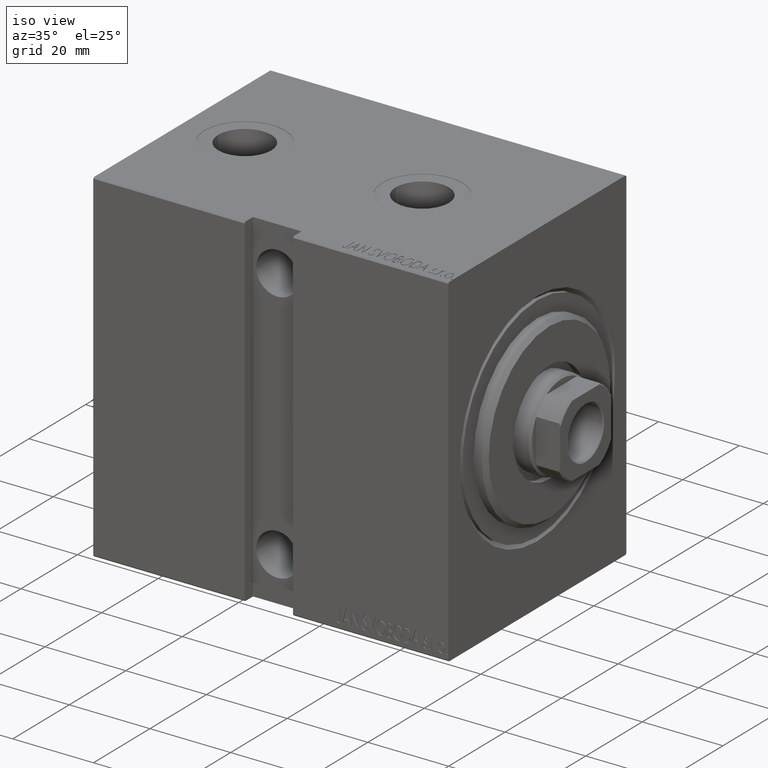
[diagram: clean part render]
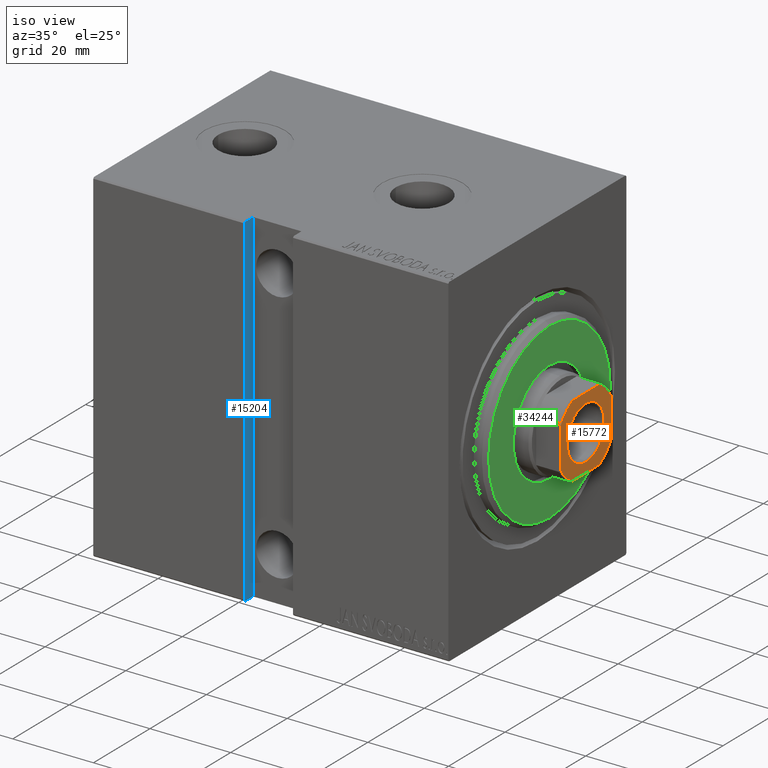
[diagram: same view with three faces highlighted in distinct colors, each labeled with its STEP entity id]
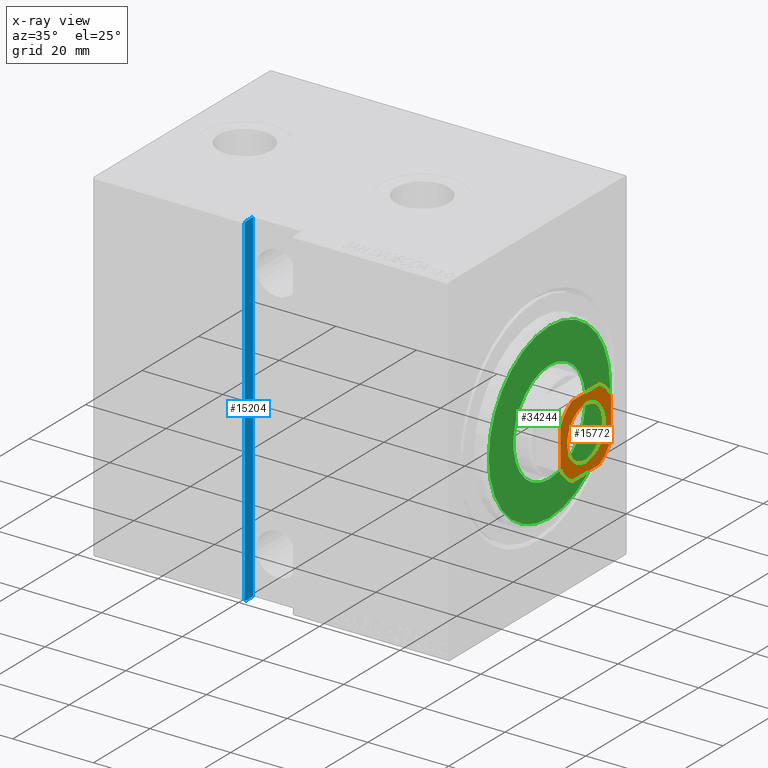
[diagram: x-ray of the same camera — body ghosted, the three highlighted faces saturated]
A machine part, iso view with three faces highlighted in distinct colors.
The next image is the same camera in x-ray (body ghosted, the three faces saturated) — at least one of them is partly hidden behind the body in this view.
Their STEP definitions:

[orange] entity #15772 — the highlighted planar face has unit normal (1, 0, -0).
#382 = CARTESIAN_POINT ( 'NONE',  ( -8.999999999999998224, -9.000000000000001776, 88.00000000000000000 ) ) ;
#469 = DIRECTION ( 'NONE',  ( -1.000000000000000000, -0.000000000000000000, -0.000000000000000000 ) ) ;
#750 = EDGE_CURVE ( 'NONE', #10145, #30792, #9966, .T. ) ;
#1227 = DIRECTION ( 'NONE',  ( 1.000000000000000000, 0.000000000000000000, 0.000000000000000000 ) ) ;
#1326 = FACE_BOUND ( 'NONE', #40273, .T. ) ;
#1560 = PLANE ( 'NONE',  #3430 ) ;
#2052 = DIRECTION ( 'NONE',  ( -0.000000000000000000, 0.000000000000000000, 1.000000000000000000 ) ) ;
#2155 = AXIS2_PLACEMENT_3D ( 'NONE', #39430, #36520, #39646 ) ;
#2222 = DIRECTION ( 'NONE',  ( 0.000000000000000000, -0.000000000000000000, -1.000000000000000000 ) ) ;
#2918 = CARTESIAN_POINT ( 'NONE',  ( -9.000000000000001776, 4.800000000000007816, 88.00000000000000000 ) ) ;
#3076 = LINE ( 'NONE', #9990, #25803 ) ;
#3413 = EDGE_CURVE ( 'NONE', #31403, #19764, #42720, .T. ) ;
#3430 = AXIS2_PLACEMENT_3D ( 'NONE', #15394, #22065, #8465 ) ;
#5018 = CIRCLE ( 'NONE', #11446, 6.550000000000000711 ) ;
#5256 = DIRECTION ( 'NONE',  ( -0.000000000000000000, 0.000000000000000000, 1.000000000000000000 ) ) ;
#6451 = CARTESIAN_POINT ( 'NONE',  ( 8.999999999999998224, 8.999999999999998224, 88.00000000000000000 ) ) ;
#7095 = EDGE_CURVE ( 'NONE', #37706, #38026, #5018, .T. ) ;
#7229 = VERTEX_POINT ( 'NONE', #14025 ) ;
#7811 = CARTESIAN_POINT ( 'NONE',  ( -9.000000000000001776, 8.999999999999998224, 88.00000000000000000 ) ) ;
#8465 = DIRECTION ( 'NONE',  ( 1.000000000000000000, 0.000000000000000000, 0.000000000000000000 ) ) ;
#9097 = CARTESIAN_POINT ( 'NONE',  ( 6.550000000000000711, 0.000000000000000000, 88.00000000000000000 ) ) ;
#9129 = ORIENTED_EDGE ( 'NONE', *, *, #23043, .T. ) ;
#9966 = CIRCLE ( 'NONE', #29167, 10.19999999999998863 ) ;
#9990 = CARTESIAN_POINT ( 'NONE',  ( -9.000000000000001776, 8.999999999999998224, 88.00000000000000000 ) ) ;
#10145 = VERTEX_POINT ( 'NONE', #25550 ) ;
#11076 = ORIENTED_EDGE ( 'NONE', *, *, #36898, .T. ) ;
#11446 = AXIS2_PLACEMENT_3D ( 'NONE', #29416, #2222, #42518 ) ;
#12097 = EDGE_CURVE ( 'NONE', #41346, #36229, #3076, .T. ) ;
#12498 = DIRECTION ( 'NONE',  ( -1.927470528863119049E-16, 1.000000000000000000, -0.000000000000000000 ) ) ;
#12730 = CARTESIAN_POINT ( 'NONE',  ( 4.799999999999979394, 8.999999999999998224, 88.00000000000000000 ) ) ;
#14025 = CARTESIAN_POINT ( 'NONE',  ( -4.800000000000012257, 8.999999999999998224, 88.00000000000000000 ) ) ;
#14219 = CIRCLE ( 'NONE', #36260, 10.20000000000000462 ) ;
#14915 = VECTOR ( 'NONE', #33582, 1000.000000000000000 ) ;
#14998 = DIRECTION ( 'NONE',  ( 1.000000000000000000, 0.000000000000000000, 0.000000000000000000 ) ) ;
#15394 = CARTESIAN_POINT ( 'NONE',  ( 0.000000000000000000, 0.000000000000000000, 88.00000000000000000 ) ) ;
#15772 = ADVANCED_FACE ( 'NONE', ( #1326, #22296 ), #1560, .T. ) ;
#15783 = CIRCLE ( 'NONE', #18606, 10.19999999999997975 ) ;
#17420 = CARTESIAN_POINT ( 'NONE',  ( 0.000000000000000000, 0.000000000000000000, 88.00000000000000000 ) ) ;
#18606 = AXIS2_PLACEMENT_3D ( 'NONE', #17420, #27657, #20104 ) ;
#19077 = ORIENTED_EDGE ( 'NONE', *, *, #37608, .T. ) ;
#19764 = VERTEX_POINT ( 'NONE', #35438 ) ;
#20019 = LINE ( 'NONE', #382, #14915 ) ;
#20104 = DIRECTION ( 'NONE',  ( 1.000000000000000000, 0.000000000000000000, 0.000000000000000000 ) ) ;
#20281 = EDGE_CURVE ( 'NONE', #41378, #31403, #20019, .T. ) ;
#20450 = CARTESIAN_POINT ( 'NONE',  ( 0.000000000000000000, 0.000000000000000000, 88.00000000000000000 ) ) ;
#21368 = CIRCLE ( 'NONE', #2155, 6.550000000000000711 ) ;
#22065 = DIRECTION ( 'NONE',  ( -0.000000000000000000, 0.000000000000000000, 1.000000000000000000 ) ) ;
#22296 = FACE_OUTER_BOUND ( 'NONE', #36457, .T. ) ;
#22518 = CARTESIAN_POINT ( 'NONE',  ( -6.550000000000000711, 8.021436534415164234E-16, 88.00000000000000000 ) ) ;
#23043 = EDGE_CURVE ( 'NONE', #38026, #37706, #21368, .T. ) ;
#23881 = ORIENTED_EDGE ( 'NONE', *, *, #7095, .T. ) ;
#25119 = EDGE_CURVE ( 'NONE', #7229, #41346, #14219, .T. ) ;
#25550 = CARTESIAN_POINT ( 'NONE',  ( 8.999999999999998224, 4.799999999999978506, 88.00000000000000000 ) ) ;
#25803 = VECTOR ( 'NONE', #44030, 1000.000000000000000 ) ;
#25892 = CARTESIAN_POINT ( 'NONE',  ( -4.799999999999956302, -9.000000000000001776, 88.00000000000000000 ) ) ;
#27657 = DIRECTION ( 'NONE',  ( -0.000000000000000000, 0.000000000000000000, 1.000000000000000000 ) ) ;
#27662 = LINE ( 'NONE', #7811, #35814 ) ;
#29167 = AXIS2_PLACEMENT_3D ( 'NONE', #39023, #2052, #14998 ) ;
#29416 = CARTESIAN_POINT ( 'NONE',  ( 0.000000000000000000, 0.000000000000000000, 88.00000000000000000 ) ) ;
#30683 = EDGE_CURVE ( 'NONE', #36229, #41378, #15783, .T. ) ;
#30792 = VERTEX_POINT ( 'NONE', #12730 ) ;
#31403 = VERTEX_POINT ( 'NONE', #34076 ) ;
#31688 = ORIENTED_EDGE ( 'NONE', *, *, #3413, .T. ) ;
#33361 = DIRECTION ( 'NONE',  ( 1.000000000000000000, 0.000000000000000000, 0.000000000000000000 ) ) ;
#33582 = DIRECTION ( 'NONE',  ( 1.000000000000000000, 0.000000000000000000, 0.000000000000000000 ) ) ;
#34076 = CARTESIAN_POINT ( 'NONE',  ( 4.799999999999974065, -9.000000000000001776, 88.00000000000000000 ) ) ;
#35438 = CARTESIAN_POINT ( 'NONE',  ( 9.000000000000001776, -4.799999999999974065, 88.00000000000000000 ) ) ;
#35814 = VECTOR ( 'NONE', #469, 1000.000000000000000 ) ;
#36229 = VERTEX_POINT ( 'NONE', #37986 ) ;
#36260 = AXIS2_PLACEMENT_3D ( 'NONE', #43818, #42547, #33361 ) ;
#36457 = EDGE_LOOP ( 'NONE', ( #11076, #38423, #19077, #42194, #41554, #40236, #39538, #31688 ) ) ;
#36520 = DIRECTION ( 'NONE',  ( 0.000000000000000000, -0.000000000000000000, -1.000000000000000000 ) ) ;
#36898 = EDGE_CURVE ( 'NONE', #19764, #10145, #36940, .T. ) ;
#36940 = LINE ( 'NONE', #6451, #37245 ) ;
#37245 = VECTOR ( 'NONE', #12498, 1000.000000000000000 ) ;
#37608 = EDGE_CURVE ( 'NONE', #30792, #7229, #27662, .T. ) ;
#37706 = VERTEX_POINT ( 'NONE', #22518 ) ;
#37766 = AXIS2_PLACEMENT_3D ( 'NONE', #20450, #5256, #1227 ) ;
#37986 = CARTESIAN_POINT ( 'NONE',  ( -8.999999999999998224, -4.799999999999960743, 88.00000000000000000 ) ) ;
#38026 = VERTEX_POINT ( 'NONE', #9097 ) ;
#38423 = ORIENTED_EDGE ( 'NONE', *, *, #750, .T. ) ;
#39023 = CARTESIAN_POINT ( 'NONE',  ( 0.000000000000000000, 0.000000000000000000, 88.00000000000000000 ) ) ;
#39430 = CARTESIAN_POINT ( 'NONE',  ( 0.000000000000000000, 0.000000000000000000, 88.00000000000000000 ) ) ;
#39538 = ORIENTED_EDGE ( 'NONE', *, *, #20281, .T. ) ;
#39646 = DIRECTION ( 'NONE',  ( 1.000000000000000000, 0.000000000000000000, 0.000000000000000000 ) ) ;
#40236 = ORIENTED_EDGE ( 'NONE', *, *, #30683, .T. ) ;
#40273 = EDGE_LOOP ( 'NONE', ( #9129, #23881 ) ) ;
#41346 = VERTEX_POINT ( 'NONE', #2918 ) ;
#41378 = VERTEX_POINT ( 'NONE', #25892 ) ;
#41554 = ORIENTED_EDGE ( 'NONE', *, *, #12097, .T. ) ;
#42194 = ORIENTED_EDGE ( 'NONE', *, *, #25119, .T. ) ;
#42518 = DIRECTION ( 'NONE',  ( 1.000000000000000000, 0.000000000000000000, 0.000000000000000000 ) ) ;
#42547 = DIRECTION ( 'NONE',  ( -0.000000000000000000, 0.000000000000000000, 1.000000000000000000 ) ) ;
#42720 = CIRCLE ( 'NONE', #37766, 10.19999999999998863 ) ;
#43818 = CARTESIAN_POINT ( 'NONE',  ( 0.000000000000000000, 0.000000000000000000, 88.00000000000000000 ) ) ;
#44030 = DIRECTION ( 'NONE',  ( 1.927470528863119049E-16, -1.000000000000000000, 0.000000000000000000 ) ) ;

[blue] entity #15204 — the highlighted planar face has unit normal (-1, 0, -0).
#1943 = VERTEX_POINT ( 'NONE', #28978 ) ;
#2559 = CARTESIAN_POINT ( 'NONE',  ( 50.49999999999999289, 28.50000000000000711, -42.50000000000000711 ) ) ;
#3397 = VECTOR ( 'NONE', #27287, 1000.000000000000000 ) ;
#3891 = ORIENTED_EDGE ( 'NONE', *, *, #15311, .F. ) ;
#3899 = ORIENTED_EDGE ( 'NONE', *, *, #7161, .T. ) ;
#4480 = LINE ( 'NONE', #37078, #15559 ) ;
#7043 = VERTEX_POINT ( 'NONE', #42084 ) ;
#7161 = EDGE_CURVE ( 'NONE', #1943, #39086, #13587, .T. ) ;
#7344 = VECTOR ( 'NONE', #9400, 1000.000000000000000 ) ;
#8144 = CARTESIAN_POINT ( 'NONE',  ( 50.50000000000000711, 28.50000000000000711, 42.49999999999995737 ) ) ;
#9400 = DIRECTION ( 'NONE',  ( -1.154479749032201304E-16, -0.7071067811865393571, -0.7071067811865556774 ) ) ;
#9584 = ORIENTED_EDGE ( 'NONE', *, *, #37366, .F. ) ;
#9920 = DIRECTION ( 'NONE',  ( -1.154479749032148056E-16, 0.7071067811865721087, -0.7071067811865230368 ) ) ;
#10137 = CARTESIAN_POINT ( 'NONE',  ( 50.50000000000000711, 28.50000000000000711, 42.49999999999995737 ) ) ;
#10507 = ORIENTED_EDGE ( 'NONE', *, *, #17363, .T. ) ;
#12386 = FACE_OUTER_BOUND ( 'NONE', #31683, .T. ) ;
#12867 = VECTOR ( 'NONE', #27176, 1000.000000000000000 ) ;
#13074 = EDGE_CURVE ( 'NONE', #39086, #7043, #19852, .T. ) ;
#13587 = LINE ( 'NONE', #40725, #12867 ) ;
#14231 = VERTEX_POINT ( 'NONE', #17783 ) ;
#15204 = ADVANCED_FACE ( 'NONE', ( #12386 ), #15498, .F. ) ;
#15311 = EDGE_CURVE ( 'NONE', #37182, #39304, #29958, .T. ) ;
#15498 = PLANE ( 'NONE',  #43193 ) ;
#15559 = VECTOR ( 'NONE', #9920, 1000.000000000000000 ) ;
#15946 = DIRECTION ( 'NONE',  ( -1.632680918566407286E-16, 0.000000000000000000, -1.000000000000000000 ) ) ;
#17363 = EDGE_CURVE ( 'NONE', #14231, #1943, #4480, .T. ) ;
#17783 = CARTESIAN_POINT ( 'NONE',  ( 50.50000000000000711, 31.19999999999999218, 42.49999999999995737 ) ) ;
#19852 = LINE ( 'NONE', #43659, #7344 ) ;
#21467 = CARTESIAN_POINT ( 'NONE',  ( 50.49999999999999289, 28.50000000000000711, -42.50000000000000711 ) ) ;
#21949 = DIRECTION ( 'NONE',  ( 1.000000000000000000, 0.000000000000000000, -1.632680918566407286E-16 ) ) ;
#24860 = LINE ( 'NONE', #8144, #40020 ) ;
#27176 = DIRECTION ( 'NONE',  ( -1.632680918566407286E-16, -0.000000000000000000, -1.000000000000000000 ) ) ;
#27287 = DIRECTION ( 'NONE',  ( -1.632680918566407286E-16, -0.000000000000000000, -1.000000000000000000 ) ) ;
#28978 = CARTESIAN_POINT ( 'NONE',  ( 50.50000000000000711, 31.50000000000000711, 42.20000000000001705 ) ) ;
#29958 = LINE ( 'NONE', #2559, #3397 ) ;
#30174 = VECTOR ( 'NONE', #42147, 1000.000000000000000 ) ;
#31683 = EDGE_LOOP ( 'NONE', ( #3899, #39459, #9584, #3891, #43119, #10507 ) ) ;
#32189 = CARTESIAN_POINT ( 'NONE',  ( 50.49999999999999289, 31.50000000000000711, -42.20000000000000284 ) ) ;
#33188 = EDGE_CURVE ( 'NONE', #37182, #14231, #24860, .T. ) ;
#35741 = CARTESIAN_POINT ( 'NONE',  ( 50.49999999999999289, 28.50000000000000711, -42.50000000000000711 ) ) ;
#37078 = CARTESIAN_POINT ( 'NONE',  ( 50.50000000000000711, 31.19999999999998863, 42.50000000000000000 ) ) ;
#37182 = VERTEX_POINT ( 'NONE', #10137 ) ;
#37366 = EDGE_CURVE ( 'NONE', #39304, #7043, #38150, .T. ) ;
#38150 = LINE ( 'NONE', #21467, #30174 ) ;
#39086 = VERTEX_POINT ( 'NONE', #32189 ) ;
#39304 = VERTEX_POINT ( 'NONE', #43951 ) ;
#39459 = ORIENTED_EDGE ( 'NONE', *, *, #13074, .T. ) ;
#40020 = VECTOR ( 'NONE', #42639, 1000.000000000000000 ) ;
#40725 = CARTESIAN_POINT ( 'NONE',  ( 50.49999999999999289, 31.50000000000000711, -42.50000000000000711 ) ) ;
#42084 = CARTESIAN_POINT ( 'NONE',  ( 50.49999999999999289, 31.20000000000001350, -42.50000000000000711 ) ) ;
#42147 = DIRECTION ( 'NONE',  ( -0.000000000000000000, 1.000000000000000000, -0.000000000000000000 ) ) ;
#42639 = DIRECTION ( 'NONE',  ( -0.000000000000000000, 1.000000000000000000, -0.000000000000000000 ) ) ;
#43119 = ORIENTED_EDGE ( 'NONE', *, *, #33188, .T. ) ;
#43193 = AXIS2_PLACEMENT_3D ( 'NONE', #35741, #21949, #15946 ) ;
#43659 = CARTESIAN_POINT ( 'NONE',  ( 50.49999999999999289, 31.50000000000001421, -42.20000000000000284 ) ) ;
#43951 = CARTESIAN_POINT ( 'NONE',  ( 50.50000000000000711, 28.50000000000000355, -42.50000000000000711 ) ) ;

[green] entity #34244 — the highlighted planar face has unit normal (1, 0, 0).
#1109 = CARTESIAN_POINT ( 'NONE',  ( 3.000000000000000000, 2.694222958124177598E-15, -21.50000000000000355 ) ) ;
#1611 = ORIENTED_EDGE ( 'NONE', *, *, #2214, .T. ) ;
#1951 = DIRECTION ( 'NONE',  ( -1.000000000000000000, 0.000000000000000000, -0.000000000000000000 ) ) ;
#2214 = EDGE_CURVE ( 'NONE', #41766, #33597, #5730, .T. ) ;
#3196 = CARTESIAN_POINT ( 'NONE',  ( 3.000000000000000000, 0.000000000000000000, 0.000000000000000000 ) ) ;
#3284 = DIRECTION ( 'NONE',  ( 1.000000000000000000, -0.000000000000000000, 0.000000000000000000 ) ) ;
#3839 = CARTESIAN_POINT ( 'NONE',  ( 3.000000000000000000, 0.000000000000000000, 0.000000000000000000 ) ) ;
#5730 = CIRCLE ( 'NONE', #24241, 12.75000000000000000 ) ;
#6315 = DIRECTION ( 'NONE',  ( 0.000000000000000000, 0.000000000000000000, -1.000000000000000000 ) ) ;
#7309 = CARTESIAN_POINT ( 'NONE',  ( 3.000000000000000000, 0.000000000000000000, 12.75000000000000000 ) ) ;
#8356 = AXIS2_PLACEMENT_3D ( 'NONE', #33219, #17193, #16311 ) ;
#10419 = CARTESIAN_POINT ( 'NONE',  ( 3.000000000000000000, 0.000000000000000000, 0.000000000000000000 ) ) ;
#11332 = DIRECTION ( 'NONE',  ( 0.000000000000000000, 0.000000000000000000, -1.000000000000000000 ) ) ;
#12105 = CARTESIAN_POINT ( 'NONE',  ( 3.000000000000000000, 1.561424668912874914E-15, -12.75000000000000000 ) ) ;
#12890 = FACE_OUTER_BOUND ( 'NONE', #34351, .T. ) ;
#14652 = EDGE_CURVE ( 'NONE', #33597, #41766, #26885, .T. ) ;
#16311 = DIRECTION ( 'NONE',  ( 0.000000000000000000, 0.000000000000000000, -1.000000000000000000 ) ) ;
#16449 = FACE_BOUND ( 'NONE', #27529, .T. ) ;
#17193 = DIRECTION ( 'NONE',  ( -1.000000000000000000, 0.000000000000000000, -0.000000000000000000 ) ) ;
#22821 = DIRECTION ( 'NONE',  ( 1.000000000000000000, -0.000000000000000000, 0.000000000000000000 ) ) ;
#24241 = AXIS2_PLACEMENT_3D ( 'NONE', #39154, #1951, #11332 ) ;
#24388 = AXIS2_PLACEMENT_3D ( 'NONE', #10419, #3284, #27139 ) ;
#24960 = CIRCLE ( 'NONE', #39856, 21.50000000000000355 ) ;
#24993 = DIRECTION ( 'NONE',  ( 1.000000000000000000, -0.000000000000000000, 0.000000000000000000 ) ) ;
#25003 = EDGE_CURVE ( 'NONE', #42417, #43259, #29157, .T. ) ;
#26885 = CIRCLE ( 'NONE', #8356, 12.75000000000000000 ) ;
#27139 = DIRECTION ( 'NONE',  ( 0.000000000000000000, 0.000000000000000000, -1.000000000000000000 ) ) ;
#27529 = EDGE_LOOP ( 'NONE', ( #1611, #32692 ) ) ;
#27835 = EDGE_CURVE ( 'NONE', #43259, #42417, #24960, .T. ) ;
#29157 = CIRCLE ( 'NONE', #43350, 21.50000000000000355 ) ;
#30025 = PLANE ( 'NONE',  #24388 ) ;
#30667 = ORIENTED_EDGE ( 'NONE', *, *, #27835, .T. ) ;
#32121 = ORIENTED_EDGE ( 'NONE', *, *, #25003, .T. ) ;
#32692 = ORIENTED_EDGE ( 'NONE', *, *, #14652, .T. ) ;
#33219 = CARTESIAN_POINT ( 'NONE',  ( 3.000000000000000000, 0.000000000000000000, 0.000000000000000000 ) ) ;
#33597 = VERTEX_POINT ( 'NONE', #12105 ) ;
#34244 = ADVANCED_FACE ( 'NONE', ( #12890, #16449 ), #30025, .T. ) ;
#34351 = EDGE_LOOP ( 'NONE', ( #32121, #30667 ) ) ;
#35230 = CARTESIAN_POINT ( 'NONE',  ( 3.000000000000000000, 0.000000000000000000, 21.50000000000000355 ) ) ;
#38328 = DIRECTION ( 'NONE',  ( 0.000000000000000000, 0.000000000000000000, -1.000000000000000000 ) ) ;
#39154 = CARTESIAN_POINT ( 'NONE',  ( 3.000000000000000000, 0.000000000000000000, 0.000000000000000000 ) ) ;
#39856 = AXIS2_PLACEMENT_3D ( 'NONE', #3196, #22821, #6315 ) ;
#41766 = VERTEX_POINT ( 'NONE', #7309 ) ;
#42417 = VERTEX_POINT ( 'NONE', #35230 ) ;
#43259 = VERTEX_POINT ( 'NONE', #1109 ) ;
#43350 = AXIS2_PLACEMENT_3D ( 'NONE', #3839, #24993, #38328 ) ;